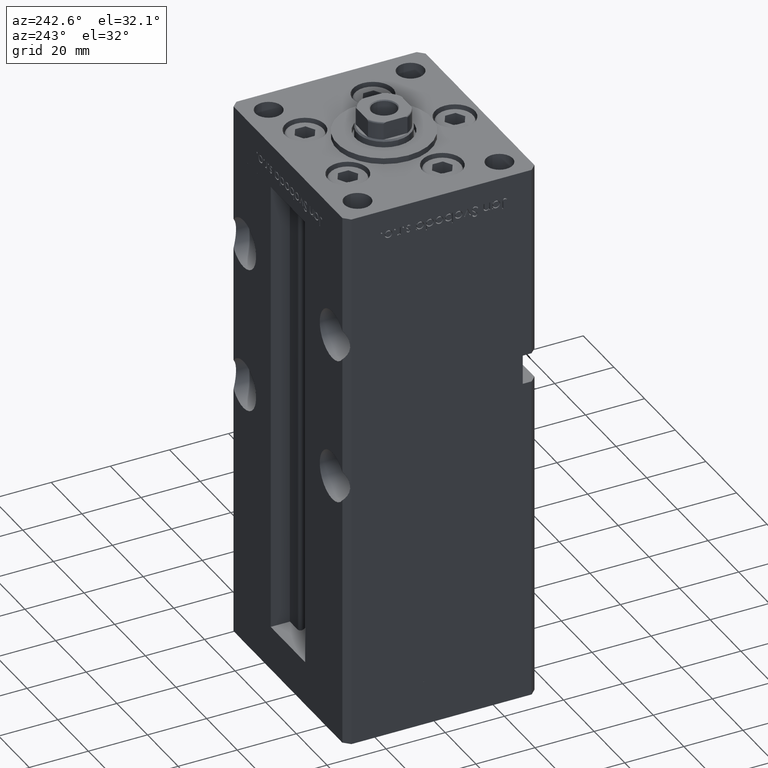
[diagram: clean part render]
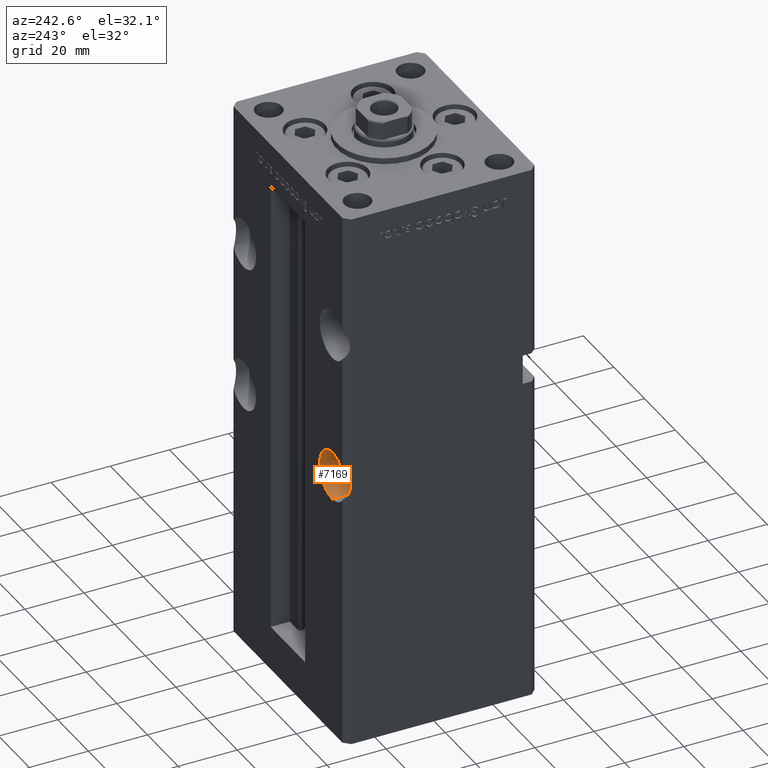
[diagram: same view with one face highlighted and labeled with its STEP entity id]
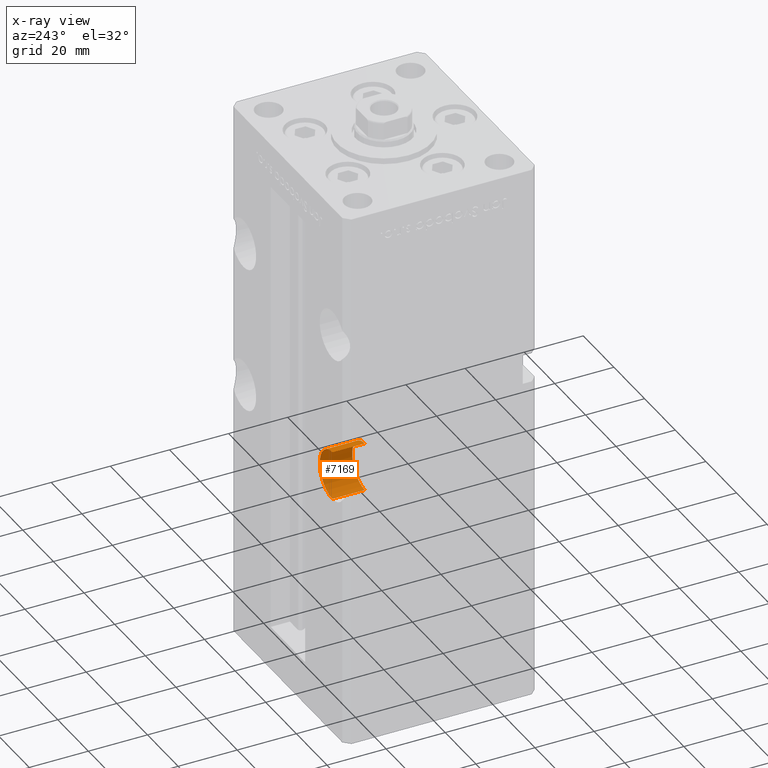
[diagram: x-ray of the same camera — body ghosted, the highlighted face saturated]
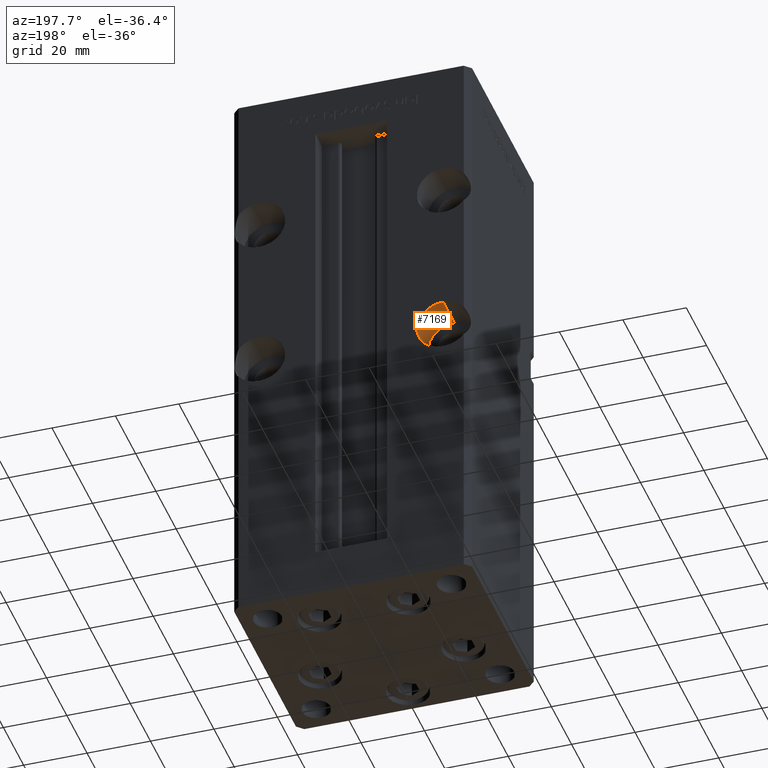
[diagram: same view with one face highlighted and labeled with its STEP entity id]
A machine part, auxiliary view. The second image highlights one B-rep face of the part: STEP entity #7169.
The next image is the same camera in x-ray: the body ghosted, the highlighted face saturated — about 0% of this face is hidden behind the body in this view.
A second angle (auxiliary view) of the same face is appended — the face is thin or edge-on in the first view.
In plain terms, the highlighted cylindrical surface (edge-blend (fillet) strip) has radius 8.25 mm, axis along (0, 1, 0).
Its self-contained STEP definition (entity closure, byte-faithful):
#934 = CARTESIAN_POINT ( 'NONE',  ( -28.99999999999999645, 32.50000000000000000, 76.00000000000001421 ) ) ;
#1197 = DIRECTION ( 'NONE',  ( 0.000000000000000000, 1.000000000000000000, 0.000000000000000000 ) ) ;
#3871 = DIRECTION ( 'NONE',  ( 0.000000000000000000, 0.000000000000000000, 1.000000000000000000 ) ) ;
#4573 = AXIS2_PLACEMENT_3D ( 'NONE', #934, #1197, #13319 ) ;
#7169 = ADVANCED_FACE ( 'NONE', ( #28348 ), #7903, .F. ) ;
#7550 = VERTEX_POINT ( 'NONE', #50068 ) ;
#7582 = DIRECTION ( 'NONE',  ( -0.000000000000000000, 1.000000000000000000, -0.000000000000000000 ) ) ;
#7903 = CYLINDRICAL_SURFACE ( 'NONE', #15536, 8.250000000000007105 ) ;
#11913 = CARTESIAN_POINT ( 'NONE',  ( -28.99999999999999645, 32.50000000000000000, 67.75000000000000000 ) ) ;
#13061 = DIRECTION ( 'NONE',  ( 0.000000000000000000, 0.000000000000000000, 1.000000000000000000 ) ) ;
#13319 = DIRECTION ( 'NONE',  ( 0.000000000000000000, 0.000000000000000000, 1.000000000000000000 ) ) ;
#14898 = EDGE_CURVE ( 'NONE', #7550, #47688, #20514, .T. ) ;
#14958 = EDGE_CURVE ( 'NONE', #49071, #46544, #20781, .T. ) ;
#15536 = AXIS2_PLACEMENT_3D ( 'NONE', #27839, #15739, #3871 ) ;
#15739 = DIRECTION ( 'NONE',  ( -0.000000000000000000, 1.000000000000000000, -0.000000000000000000 ) ) ;
#16556 = ORIENTED_EDGE ( 'NONE', *, *, #17116, .T. ) ;
#16737 = DIRECTION ( 'NONE',  ( -0.000000000000000000, 1.000000000000000000, -0.000000000000000000 ) ) ;
#17116 = EDGE_CURVE ( 'NONE', #46544, #47688, #46649, .T. ) ;
#19544 = ORIENTED_EDGE ( 'NONE', *, *, #14898, .F. ) ;
#20514 = LINE ( 'NONE', #32870, #35545 ) ;
#20781 = LINE ( 'NONE', #37155, #46686 ) ;
#23637 = EDGE_LOOP ( 'NONE', ( #19544, #44766, #36646, #16556 ) ) ;
#27839 = CARTESIAN_POINT ( 'NONE',  ( -28.99999999999999645, 21.50000000000000000, 76.00000000000001421 ) ) ;
#28348 = FACE_OUTER_BOUND ( 'NONE', #23637, .T. ) ;
#30153 = CARTESIAN_POINT ( 'NONE',  ( -28.99999999999999645, 21.50000000000000000, 84.25000000000001421 ) ) ;
#32720 = EDGE_CURVE ( 'NONE', #49071, #7550, #36782, .T. ) ;
#32870 = CARTESIAN_POINT ( 'NONE',  ( -28.99999999999999645, 21.50000000000000000, 67.75000000000000000 ) ) ;
#35545 = VECTOR ( 'NONE', #7582, 1000.000000000000000 ) ;
#36646 = ORIENTED_EDGE ( 'NONE', *, *, #14958, .T. ) ;
#36782 = CIRCLE ( 'NONE', #43672, 8.250000000000007105 ) ;
#37155 = CARTESIAN_POINT ( 'NONE',  ( -28.99999999999999645, 21.50000000000000000, 84.25000000000001421 ) ) ;
#42612 = DIRECTION ( 'NONE',  ( 0.000000000000000000, 1.000000000000000000, 0.000000000000000000 ) ) ;
#43672 = AXIS2_PLACEMENT_3D ( 'NONE', #50698, #42612, #13061 ) ;
#44766 = ORIENTED_EDGE ( 'NONE', *, *, #32720, .F. ) ;
#46544 = VERTEX_POINT ( 'NONE', #48284 ) ;
#46649 = CIRCLE ( 'NONE', #4573, 8.250000000000007105 ) ;
#46686 = VECTOR ( 'NONE', #16737, 1000.000000000000000 ) ;
#47688 = VERTEX_POINT ( 'NONE', #11913 ) ;
#48284 = CARTESIAN_POINT ( 'NONE',  ( -28.99999999999999645, 32.50000000000000000, 84.25000000000001421 ) ) ;
#49071 = VERTEX_POINT ( 'NONE', #30153 ) ;
#50068 = CARTESIAN_POINT ( 'NONE',  ( -28.99999999999999645, 21.50000000000000000, 67.75000000000000000 ) ) ;
#50698 = CARTESIAN_POINT ( 'NONE',  ( -28.99999999999999645, 21.50000000000000000, 76.00000000000001421 ) ) ;